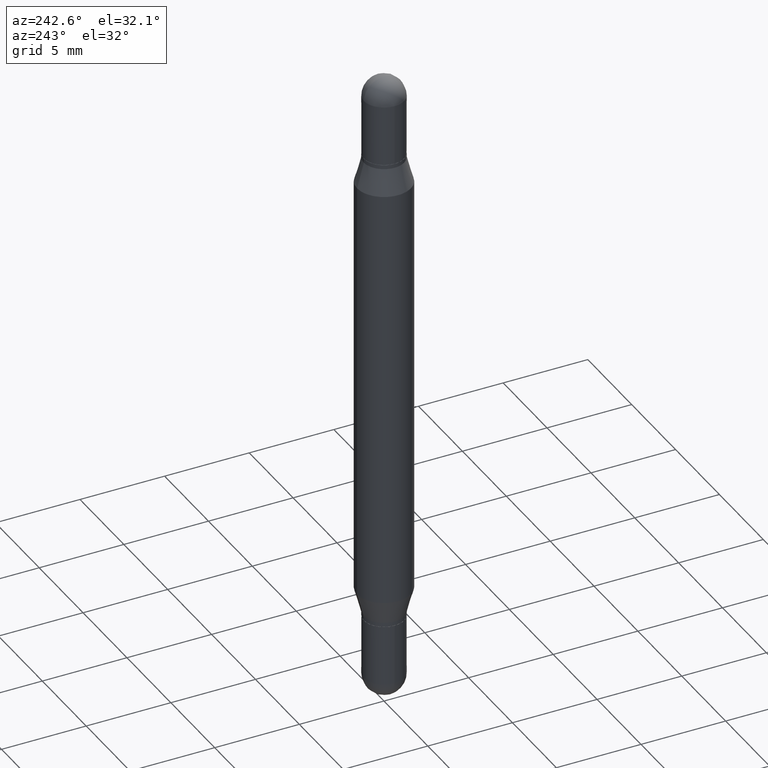
[diagram: clean part render]
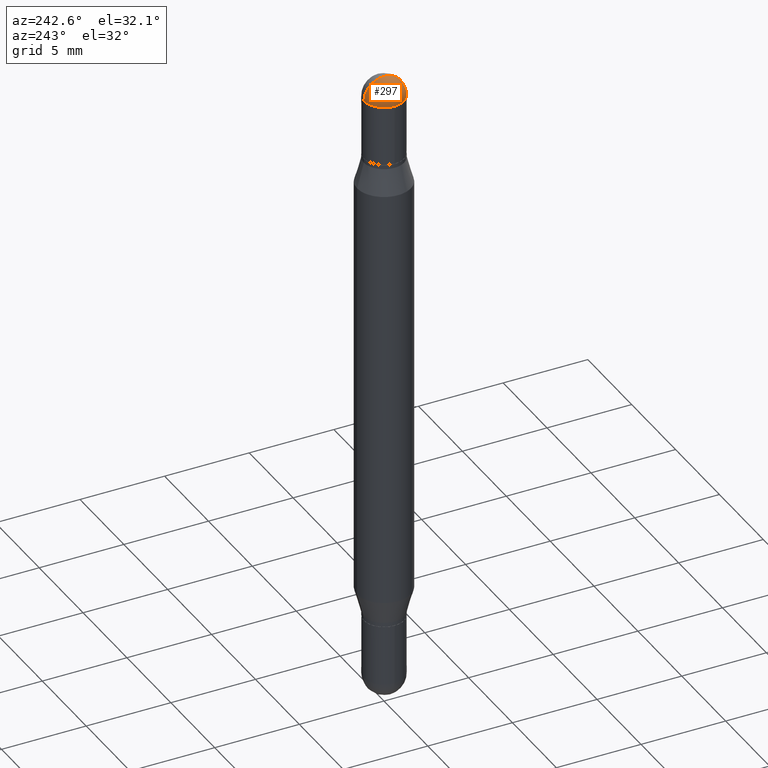
[diagram: same view with one face highlighted and labeled with its STEP entity id]
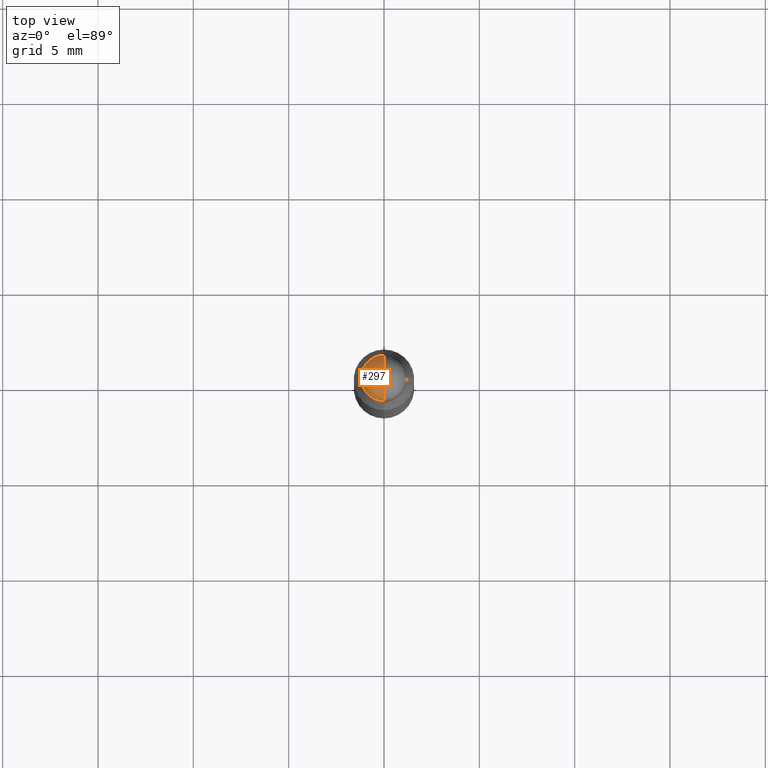
[diagram: same view with one face highlighted and labeled with its STEP entity id]
A machine part, auxiliary view. The second image highlights one B-rep face of the part: STEP entity #297.
A second angle (top view) of the same face is appended — the face is thin or edge-on in the first view.
In plain terms, the highlighted spherical surface has radius 1.1913 mm.
Its self-contained STEP definition (entity closure, byte-faithful):
#2 = EDGE_CURVE ( 'NONE', #704, #194, #813, .T. ) ;
#20 = AXIS2_PLACEMENT_3D ( 'NONE', #496, #842, #73 ) ;
#44 = ORIENTED_EDGE ( 'NONE', *, *, #2, .T. ) ;
#58 = CARTESIAN_POINT ( 'NONE',  ( 3.662187114433328241E-29, -1.751554413099070675E-17, -1.195183497228115035E-16 ) ) ;
#63 = EDGE_CURVE ( 'NONE', #194, #841, #670, .T. ) ;
#73 = DIRECTION ( 'NONE',  ( -6.860497997771530774E-15, -1.000000000000000000, 0.000000000000000000 ) ) ;
#84 = DIRECTION ( 'NONE',  ( 6.982962677686265133E-15, 1.000000000000000000, 0.000000000000000000 ) ) ;
#138 = CARTESIAN_POINT ( 'NONE',  ( 3.553510722267622201E-29, -1.720940724002502970E-16, -0.04690000000000053154 ) ) ;
#139 = ORIENTED_EDGE ( 'NONE', *, *, #682, .F. ) ;
#161 = DIRECTION ( 'NONE',  ( -6.982962677686265922E-15, -1.000000000000000000, 3.458496260635717735E-15 ) ) ;
#194 = VERTEX_POINT ( 'NONE', #244 ) ;
#195 = CARTESIAN_POINT ( 'NONE',  ( -3.275009495834508474E-16, -0.04690000000000024011, -0.04690000000000036501 ) ) ;
#244 = CARTESIAN_POINT ( 'NONE',  ( -0.04689999999999999725, -9.408370971656128076E-17, -0.04690000000000053154 ) ) ;
#279 = EDGE_CURVE ( 'NONE', #592, #704, #901, .T. ) ;
#297 = ADVANCED_FACE ( 'NONE', ( #1020 ), #417, .T. ) ;
#334 = DIRECTION ( 'NONE',  ( -1.000000000000000000, 6.982962677686265922E-15, 1.566701062079987781E-31 ) ) ;
#417 = SPHERICAL_SURFACE ( 'NONE', #974, 0.04690000000000013602 ) ;
#429 = ORIENTED_EDGE ( 'NONE', *, *, #279, .T. ) ;
#442 = DIRECTION ( 'NONE',  ( 2.445468806185136597E-29, 3.479614466977828254E-15, 1.000000000000000000 ) ) ;
#496 = CARTESIAN_POINT ( 'NONE',  ( 3.549499992371371099E-29, -1.778376658882507705E-16, -0.04690000000000025399 ) ) ;
#516 = DIRECTION ( 'NONE',  ( 1.000000000000000000, -6.982962677686265922E-15, -1.566701062080016245E-31 ) ) ;
#592 = VERTEX_POINT ( 'NONE', #58 ) ;
#593 = CARTESIAN_POINT ( 'NONE',  ( 3.549499992371371099E-29, -1.778376658882507705E-16, -0.04690000000000025399 ) ) ;
#670 = CIRCLE ( 'NONE', #723, 0.04689999999999999725 ) ;
#682 = EDGE_CURVE ( 'NONE', #592, #841, #1053, .T. ) ;
#699 = DIRECTION ( 'NONE',  ( 1.000000000000000000, -6.982962677686266711E-15, 0.000000000000000000 ) ) ;
#703 = CARTESIAN_POINT ( 'NONE',  ( 3.553510722267622201E-29, -1.720940724002502970E-16, -0.04690000000000053154 ) ) ;
#704 = VERTEX_POINT ( 'NONE', #939 ) ;
#723 = AXIS2_PLACEMENT_3D ( 'NONE', #138, #1093, #898 ) ;
#765 = ORIENTED_EDGE ( 'NONE', *, *, #63, .T. ) ;
#791 = EDGE_LOOP ( 'NONE', ( #139, #429, #44, #765 ) ) ;
#813 = CIRCLE ( 'NONE', #1108, 0.04689999999999999725 ) ;
#841 = VERTEX_POINT ( 'NONE', #195 ) ;
#842 = DIRECTION ( 'NONE',  ( -1.000000000000000000, 6.860497997771530774E-15, 5.827999781331232286E-31 ) ) ;
#898 = DIRECTION ( 'NONE',  ( 1.000000000000000000, -6.982962677686266711E-15, 0.000000000000000000 ) ) ;
#901 = CIRCLE ( 'NONE', #20, 0.04690000000000013602 ) ;
#903 = AXIS2_PLACEMENT_3D ( 'NONE', #593, #516, #84 ) ;
#939 = CARTESIAN_POINT ( 'NONE',  ( 3.217573560955207797E-16, 0.04689999999999990010, -0.04690000000000069114 ) ) ;
#974 = AXIS2_PLACEMENT_3D ( 'NONE', #1111, #334, #161 ) ;
#1020 = FACE_OUTER_BOUND ( 'NONE', #791, .T. ) ;
#1053 = CIRCLE ( 'NONE', #903, 0.04690000000000013602 ) ;
#1093 = DIRECTION ( 'NONE',  ( 2.445468806185136597E-29, 3.479614466977828254E-15, 1.000000000000000000 ) ) ;
#1108 = AXIS2_PLACEMENT_3D ( 'NONE', #703, #442, #699 ) ;
#1111 = CARTESIAN_POINT ( 'NONE',  ( 3.549499992371371099E-29, -1.778376658882507705E-16, -0.04690000000000025399 ) ) ;